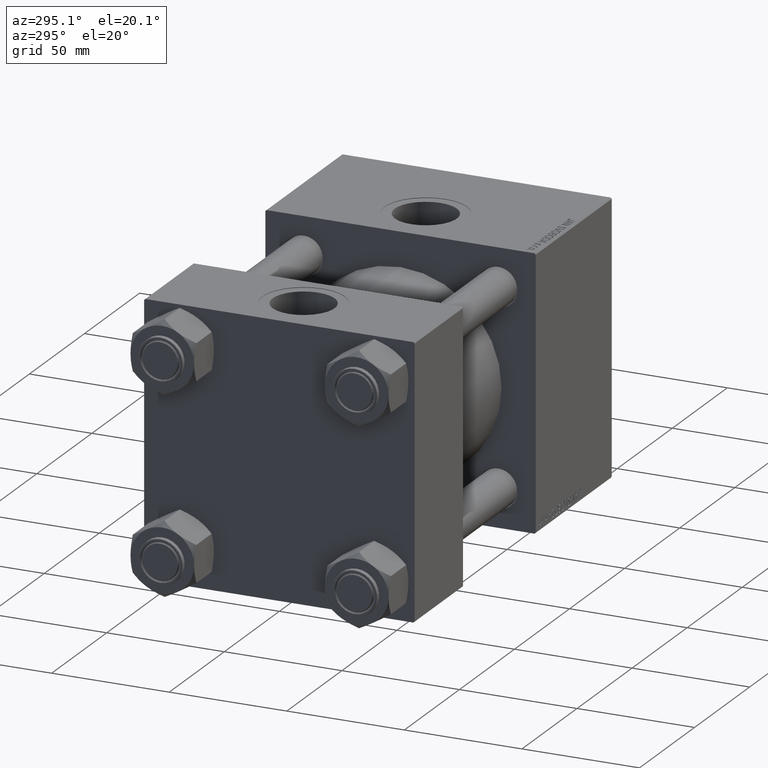
[diagram: clean part render]
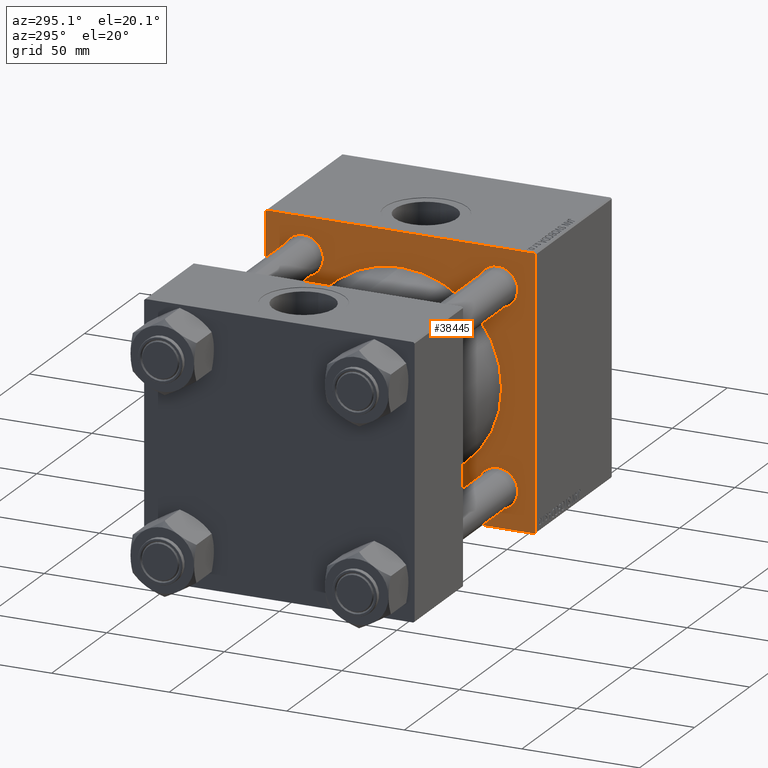
[diagram: same view with one face highlighted and labeled with its STEP entity id]
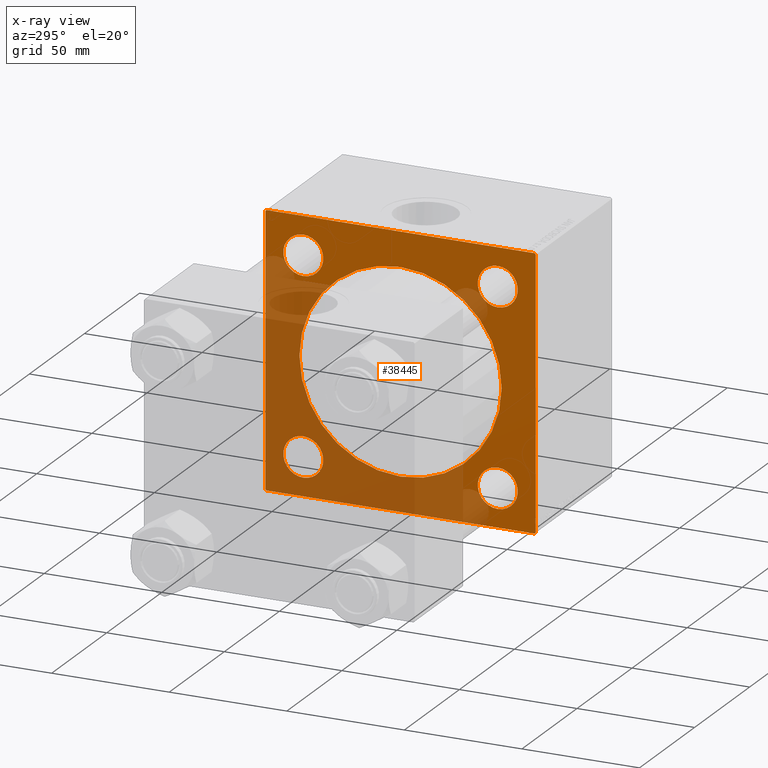
[diagram: x-ray of the same camera — body ghosted, the highlighted face saturated]
A machine part, auxiliary view. The second image highlights one B-rep face of the part: STEP entity #38445.
The next image is the same camera in x-ray: the body ghosted, the highlighted face saturated — about 46% of this face is hidden behind the body in this view.
In plain terms, the highlighted planar face has unit normal (-1, 0, 0).
Its self-contained STEP definition (entity closure, byte-faithful):
#689 = ORIENTED_EDGE ( 'NONE', *, *, #1325, .T. ) ;
#1325 = EDGE_CURVE ( 'NONE', #22527, #28435, #46600, .T. ) ;
#1783 = CARTESIAN_POINT ( 'NONE',  ( 110.0000000000000000, 41.34999999999999432, 41.35000000000000142 ) ) ;
#2026 = CARTESIAN_POINT ( 'NONE',  ( 110.0000000000000000, 41.34999999999999432, -49.85000000000001563 ) ) ;
#2557 = CARTESIAN_POINT ( 'NONE',  ( 110.0000000000000000, -57.25000000000117240, 57.24999999999879208 ) ) ;
#2833 = VECTOR ( 'NONE', #5933, 1000.000000000000000 ) ;
#3141 = CARTESIAN_POINT ( 'NONE',  ( 110.0000000000000000, -41.34999999999998721, 41.35000000000000853 ) ) ;
#3241 = EDGE_CURVE ( 'NONE', #27034, #22527, #16781, .T. ) ;
#3319 = LINE ( 'NONE', #2557, #4171 ) ;
#4171 = VECTOR ( 'NONE', #33513, 1000.000000000000000 ) ;
#4493 = CARTESIAN_POINT ( 'NONE',  ( 110.0000000000000000, -41.34999999999998721, -32.85000000000000142 ) ) ;
#5264 = VECTOR ( 'NONE', #11348, 1000.000000000000000 ) ;
#5413 = ORIENTED_EDGE ( 'NONE', *, *, #41910, .T. ) ;
#5604 = EDGE_CURVE ( 'NONE', #40890, #50337, #17015, .T. ) ;
#5933 = DIRECTION ( 'NONE',  ( 0.000000000000000000, 0.000000000000000000, -1.000000000000000000 ) ) ;
#6048 = VERTEX_POINT ( 'NONE', #49027 ) ;
#7013 = CARTESIAN_POINT ( 'NONE',  ( 110.0000000000000000, 57.24999999999840838, 57.25000000000159162 ) ) ;
#7116 = FACE_BOUND ( 'NONE', #41806, .T. ) ;
#7373 = CIRCLE ( 'NONE', #48263, 8.500000000000007105 ) ;
#7489 = CIRCLE ( 'NONE', #9980, 8.500000000000007105 ) ;
#7519 = VECTOR ( 'NONE', #26239, 1000.000000000000000 ) ;
#7721 = EDGE_LOOP ( 'NONE', ( #17614, #37702 ) ) ;
#7861 = DIRECTION ( 'NONE',  ( -1.000000000000000000, 0.000000000000000000, -0.000000000000000000 ) ) ;
#8004 = AXIS2_PLACEMENT_3D ( 'NONE', #11218, #26578, #30429 ) ;
#8992 = EDGE_LOOP ( 'NONE', ( #34278, #18269 ) ) ;
#9466 = DIRECTION ( 'NONE',  ( 0.000000000000000000, 0.000000000000000000, 1.000000000000000000 ) ) ;
#9575 = CARTESIAN_POINT ( 'NONE',  ( 110.0000000000000000, 2.663896022368408223E-15, -43.00000000000000000 ) ) ;
#9980 = AXIS2_PLACEMENT_3D ( 'NONE', #50235, #45893, #25642 ) ;
#10244 = DIRECTION ( 'NONE',  ( 0.000000000000000000, 0.000000000000000000, 1.000000000000000000 ) ) ;
#10668 = DIRECTION ( 'NONE',  ( 0.000000000000000000, 0.000000000000000000, 1.000000000000000000 ) ) ;
#10860 = LINE ( 'NONE', #19047, #5264 ) ;
#10963 = PLANE ( 'NONE',  #44370 ) ;
#11134 = VECTOR ( 'NONE', #49704, 1000.000000000000000 ) ;
#11218 = CARTESIAN_POINT ( 'NONE',  ( 110.0000000000000000, -2.602085213965210642E-15, 0.000000000000000000 ) ) ;
#11348 = DIRECTION ( 'NONE',  ( 0.000000000000000000, -1.000000000000000000, -1.206764157201257291E-16 ) ) ;
#11729 = DIRECTION ( 'NONE',  ( -0.000000000000000000, -0.7071067811865279218, -0.7071067811865672237 ) ) ;
#12310 = EDGE_CURVE ( 'NONE', #47603, #21343, #21232, .T. ) ;
#13384 = ORIENTED_EDGE ( 'NONE', *, *, #37283, .T. ) ;
#13608 = LINE ( 'NONE', #25377, #2833 ) ;
#14519 = DIRECTION ( 'NONE',  ( 1.000000000000000000, -0.000000000000000000, 0.000000000000000000 ) ) ;
#14729 = LINE ( 'NONE', #18312, #7519 ) ;
#14815 = FACE_OUTER_BOUND ( 'NONE', #38710, .T. ) ;
#15251 = DIRECTION ( 'NONE',  ( 1.000000000000000000, -0.000000000000000000, 0.000000000000000000 ) ) ;
#15753 = VERTEX_POINT ( 'NONE', #21176 ) ;
#15802 = FACE_BOUND ( 'NONE', #22083, .T. ) ;
#15884 = AXIS2_PLACEMENT_3D ( 'NONE', #17922, #49692, #10244 ) ;
#16297 = EDGE_CURVE ( 'NONE', #47173, #27369, #3319, .T. ) ;
#16781 = LINE ( 'NONE', #40563, #21837 ) ;
#16798 = DIRECTION ( 'NONE',  ( 1.000000000000000000, 0.000000000000000000, 0.000000000000000000 ) ) ;
#17015 = CIRCLE ( 'NONE', #8004, 43.00000000000000000 ) ;
#17413 = CARTESIAN_POINT ( 'NONE',  ( 110.0000000000000000, 57.50000000000000000, -56.99999999999994316 ) ) ;
#17614 = ORIENTED_EDGE ( 'NONE', *, *, #32831, .T. ) ;
#17626 = DIRECTION ( 'NONE',  ( 0.000000000000000000, 0.000000000000000000, 1.000000000000000000 ) ) ;
#17922 = CARTESIAN_POINT ( 'NONE',  ( 110.0000000000000000, 41.34999999999999432, -41.35000000000000142 ) ) ;
#18175 = ORIENTED_EDGE ( 'NONE', *, *, #35247, .T. ) ;
#18251 = ORIENTED_EDGE ( 'NONE', *, *, #12310, .T. ) ;
#18269 = ORIENTED_EDGE ( 'NONE', *, *, #37748, .T. ) ;
#18312 = CARTESIAN_POINT ( 'NONE',  ( 110.0000000000000000, -57.49999999999999289, 57.49999999999999289 ) ) ;
#18347 = ORIENTED_EDGE ( 'NONE', *, *, #25012, .T. ) ;
#18473 = EDGE_CURVE ( 'NONE', #28502, #26791, #7489, .T. ) ;
#18615 = CARTESIAN_POINT ( 'NONE',  ( 110.0000000000000000, -41.34999999999998721, 32.85000000000000142 ) ) ;
#18759 = DIRECTION ( 'NONE',  ( 0.000000000000000000, 0.000000000000000000, 1.000000000000000000 ) ) ;
#18761 = ORIENTED_EDGE ( 'NONE', *, *, #16297, .T. ) ;
#18771 = ORIENTED_EDGE ( 'NONE', *, *, #36863, .F. ) ;
#19047 = CARTESIAN_POINT ( 'NONE',  ( 110.0000000000000000, 57.50000000000000000, 57.50000000000000711 ) ) ;
#19204 = CARTESIAN_POINT ( 'NONE',  ( 110.0000000000000000, 57.50000000000000000, -57.49999999999996447 ) ) ;
#19247 = DIRECTION ( 'NONE',  ( 1.000000000000000000, -0.000000000000000000, 0.000000000000000000 ) ) ;
#20042 = CARTESIAN_POINT ( 'NONE',  ( 110.0000000000000000, -57.49999999999999289, 56.99999999999996447 ) ) ;
#21003 = CARTESIAN_POINT ( 'NONE',  ( 110.0000000000000000, -57.49999999999999289, -56.99999999999997868 ) ) ;
#21067 = ORIENTED_EDGE ( 'NONE', *, *, #3241, .T. ) ;
#21176 = CARTESIAN_POINT ( 'NONE',  ( 110.0000000000000000, 41.34999999999999432, 49.85000000000001563 ) ) ;
#21232 = CIRCLE ( 'NONE', #49893, 8.500000000000007105 ) ;
#21343 = VERTEX_POINT ( 'NONE', #33043 ) ;
#21388 = DIRECTION ( 'NONE',  ( 0.000000000000000000, 0.000000000000000000, -1.000000000000000000 ) ) ;
#21837 = VECTOR ( 'NONE', #11729, 1000.000000000000000 ) ;
#22083 = EDGE_LOOP ( 'NONE', ( #48239, #39707 ) ) ;
#22187 = CARTESIAN_POINT ( 'NONE',  ( 110.0000000000000000, -41.34999999999998721, 41.35000000000000853 ) ) ;
#22248 = AXIS2_PLACEMENT_3D ( 'NONE', #32901, #16798, #21388 ) ;
#22527 = VERTEX_POINT ( 'NONE', #23467 ) ;
#23088 = ORIENTED_EDGE ( 'NONE', *, *, #44477, .T. ) ;
#23467 = CARTESIAN_POINT ( 'NONE',  ( 110.0000000000000000, 57.00000000000000000, -57.49999999999996447 ) ) ;
#23518 = ORIENTED_EDGE ( 'NONE', *, *, #25658, .F. ) ;
#23593 = VERTEX_POINT ( 'NONE', #39032 ) ;
#23924 = AXIS2_PLACEMENT_3D ( 'NONE', #39034, #15251, #42392 ) ;
#24584 = CIRCLE ( 'NONE', #36854, 8.500000000000007105 ) ;
#24785 = LINE ( 'NONE', #40900, #25390 ) ;
#25012 = EDGE_CURVE ( 'NONE', #32503, #27034, #13608, .T. ) ;
#25377 = CARTESIAN_POINT ( 'NONE',  ( 110.0000000000000000, 57.50000000000000000, 57.50000000000000711 ) ) ;
#25390 = VECTOR ( 'NONE', #36553, 1000.000000000000000 ) ;
#25642 = DIRECTION ( 'NONE',  ( 0.000000000000000000, 0.000000000000000000, 1.000000000000000000 ) ) ;
#25658 = EDGE_CURVE ( 'NONE', #23593, #27369, #10860, .T. ) ;
#26145 = EDGE_CURVE ( 'NONE', #28039, #15753, #49288, .T. ) ;
#26239 = DIRECTION ( 'NONE',  ( 0.000000000000000000, 0.000000000000000000, -1.000000000000000000 ) ) ;
#26563 = FACE_BOUND ( 'NONE', #8992, .T. ) ;
#26578 = DIRECTION ( 'NONE',  ( 1.000000000000000000, 0.000000000000000000, 0.000000000000000000 ) ) ;
#26791 = VERTEX_POINT ( 'NONE', #4493 ) ;
#27034 = VERTEX_POINT ( 'NONE', #17413 ) ;
#27369 = VERTEX_POINT ( 'NONE', #49112 ) ;
#27696 = LINE ( 'NONE', #7013, #29732 ) ;
#28039 = VERTEX_POINT ( 'NONE', #40184 ) ;
#28250 = EDGE_LOOP ( 'NONE', ( #18175, #18251 ) ) ;
#28435 = VERTEX_POINT ( 'NONE', #33388 ) ;
#28502 = VERTEX_POINT ( 'NONE', #34662 ) ;
#29732 = VECTOR ( 'NONE', #35388, 1000.000000000000000 ) ;
#30429 = DIRECTION ( 'NONE',  ( 0.000000000000000000, 0.000000000000000000, -1.000000000000000000 ) ) ;
#30810 = EDGE_CURVE ( 'NONE', #28435, #41756, #24785, .T. ) ;
#32055 = AXIS2_PLACEMENT_3D ( 'NONE', #1783, #35828, #9466 ) ;
#32503 = VERTEX_POINT ( 'NONE', #38031 ) ;
#32831 = EDGE_CURVE ( 'NONE', #15753, #28039, #7373, .T. ) ;
#32901 = CARTESIAN_POINT ( 'NONE',  ( 110.0000000000000000, -2.602085213965210642E-15, 0.000000000000000000 ) ) ;
#32909 = CIRCLE ( 'NONE', #23924, 8.500000000000007105 ) ;
#33043 = CARTESIAN_POINT ( 'NONE',  ( 110.0000000000000000, -41.34999999999998721, 49.85000000000002274 ) ) ;
#33388 = CARTESIAN_POINT ( 'NONE',  ( 110.0000000000000000, -56.99999999999995737, -57.49999999999997868 ) ) ;
#33513 = DIRECTION ( 'NONE',  ( -0.000000000000000000, 0.7071067811865328068, 0.7071067811865622277 ) ) ;
#34278 = ORIENTED_EDGE ( 'NONE', *, *, #5604, .T. ) ;
#34662 = CARTESIAN_POINT ( 'NONE',  ( 110.0000000000000000, -41.34999999999998721, -49.85000000000002274 ) ) ;
#35247 = EDGE_CURVE ( 'NONE', #21343, #47603, #24584, .T. ) ;
#35248 = CARTESIAN_POINT ( 'NONE',  ( 110.0000000000000000, 0.000000000000000000, 0.000000000000000000 ) ) ;
#35388 = DIRECTION ( 'NONE',  ( 0.000000000000000000, 0.7071067811865672237, -0.7071067811865279218 ) ) ;
#35828 = DIRECTION ( 'NONE',  ( 1.000000000000000000, -0.000000000000000000, 0.000000000000000000 ) ) ;
#36553 = DIRECTION ( 'NONE',  ( 0.000000000000000000, -0.7071067811865721087, 0.7071067811865230368 ) ) ;
#36854 = AXIS2_PLACEMENT_3D ( 'NONE', #22187, #14519, #10668 ) ;
#36863 = EDGE_CURVE ( 'NONE', #47173, #41756, #14729, .T. ) ;
#37071 = CARTESIAN_POINT ( 'NONE',  ( 110.0000000000000000, 41.34999999999999432, 41.35000000000000142 ) ) ;
#37283 = EDGE_CURVE ( 'NONE', #46361, #6048, #38587, .T. ) ;
#37702 = ORIENTED_EDGE ( 'NONE', *, *, #26145, .T. ) ;
#37748 = EDGE_CURVE ( 'NONE', #50337, #40890, #49290, .T. ) ;
#38031 = CARTESIAN_POINT ( 'NONE',  ( 110.0000000000000000, 57.50000000000000000, 57.00000000000000711 ) ) ;
#38445 = ADVANCED_FACE ( 'NONE', ( #42196, #50398, #7116, #15802, #26563, #14815 ), #10963, .T. ) ;
#38587 = CIRCLE ( 'NONE', #45146, 8.500000000000007105 ) ;
#38710 = EDGE_LOOP ( 'NONE', ( #689, #48710, #18771, #18761, #23518, #23088, #18347, #21067 ) ) ;
#38893 = EDGE_CURVE ( 'NONE', #26791, #28502, #32909, .T. ) ;
#39032 = CARTESIAN_POINT ( 'NONE',  ( 110.0000000000000000, 56.99999999999997158, 57.50000000000000711 ) ) ;
#39034 = CARTESIAN_POINT ( 'NONE',  ( 110.0000000000000000, -41.34999999999998721, -41.35000000000000853 ) ) ;
#39707 = ORIENTED_EDGE ( 'NONE', *, *, #18473, .T. ) ;
#40184 = CARTESIAN_POINT ( 'NONE',  ( 110.0000000000000000, 41.34999999999999432, 32.84999999999999432 ) ) ;
#40563 = CARTESIAN_POINT ( 'NONE',  ( 110.0000000000000000, 57.25000000000157030, -57.24999999999838707 ) ) ;
#40890 = VERTEX_POINT ( 'NONE', #44090 ) ;
#40900 = CARTESIAN_POINT ( 'NONE',  ( 110.0000000000000000, -57.24999999999798916, -57.25000000000196820 ) ) ;
#41544 = DIRECTION ( 'NONE',  ( 1.000000000000000000, -0.000000000000000000, 0.000000000000000000 ) ) ;
#41756 = VERTEX_POINT ( 'NONE', #21003 ) ;
#41806 = EDGE_LOOP ( 'NONE', ( #5413, #13384 ) ) ;
#41910 = EDGE_CURVE ( 'NONE', #6048, #46361, #42867, .T. ) ;
#42056 = DIRECTION ( 'NONE',  ( 0.000000000000000000, 0.000000000000000000, 1.000000000000000000 ) ) ;
#42196 = FACE_BOUND ( 'NONE', #28250, .T. ) ;
#42392 = DIRECTION ( 'NONE',  ( 0.000000000000000000, 0.000000000000000000, 1.000000000000000000 ) ) ;
#42444 = DIRECTION ( 'NONE',  ( -0.000000000000000000, 0.000000000000000000, 1.000000000000000000 ) ) ;
#42792 = CARTESIAN_POINT ( 'NONE',  ( 110.0000000000000000, 41.34999999999999432, -41.35000000000000142 ) ) ;
#42867 = CIRCLE ( 'NONE', #15884, 8.500000000000007105 ) ;
#44090 = CARTESIAN_POINT ( 'NONE',  ( 110.0000000000000000, -2.602085213965210642E-15, 43.00000000000000000 ) ) ;
#44370 = AXIS2_PLACEMENT_3D ( 'NONE', #35248, #7861, #42444 ) ;
#44477 = EDGE_CURVE ( 'NONE', #23593, #32503, #27696, .T. ) ;
#45036 = DIRECTION ( 'NONE',  ( 1.000000000000000000, -0.000000000000000000, 0.000000000000000000 ) ) ;
#45146 = AXIS2_PLACEMENT_3D ( 'NONE', #42792, #19247, #42056 ) ;
#45893 = DIRECTION ( 'NONE',  ( 1.000000000000000000, -0.000000000000000000, 0.000000000000000000 ) ) ;
#46361 = VERTEX_POINT ( 'NONE', #2026 ) ;
#46600 = LINE ( 'NONE', #19204, #11134 ) ;
#47173 = VERTEX_POINT ( 'NONE', #20042 ) ;
#47603 = VERTEX_POINT ( 'NONE', #18615 ) ;
#48239 = ORIENTED_EDGE ( 'NONE', *, *, #38893, .T. ) ;
#48263 = AXIS2_PLACEMENT_3D ( 'NONE', #37071, #45036, #17626 ) ;
#48710 = ORIENTED_EDGE ( 'NONE', *, *, #30810, .T. ) ;
#49027 = CARTESIAN_POINT ( 'NONE',  ( 110.0000000000000000, 41.34999999999999432, -32.84999999999999432 ) ) ;
#49112 = CARTESIAN_POINT ( 'NONE',  ( 110.0000000000000000, -56.99999999999998579, 57.49999999999999289 ) ) ;
#49288 = CIRCLE ( 'NONE', #32055, 8.500000000000007105 ) ;
#49290 = CIRCLE ( 'NONE', #22248, 43.00000000000000000 ) ;
#49692 = DIRECTION ( 'NONE',  ( 1.000000000000000000, -0.000000000000000000, 0.000000000000000000 ) ) ;
#49704 = DIRECTION ( 'NONE',  ( 0.000000000000000000, -1.000000000000000000, -1.206764157201257291E-16 ) ) ;
#49893 = AXIS2_PLACEMENT_3D ( 'NONE', #3141, #41544, #18759 ) ;
#50235 = CARTESIAN_POINT ( 'NONE',  ( 110.0000000000000000, -41.34999999999998721, -41.35000000000000853 ) ) ;
#50337 = VERTEX_POINT ( 'NONE', #9575 ) ;
#50398 = FACE_BOUND ( 'NONE', #7721, .T. ) ;